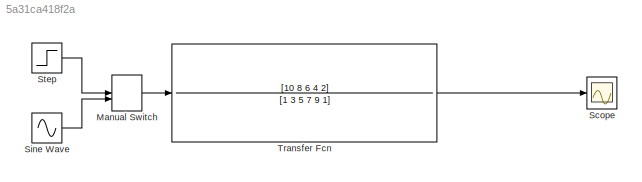
MODEL slx_5a31ca418f2a
KIND model
CONFIG AbsTol = auto
CONFIG EnableMultiTasking = off
CONFIG FixedStep = auto
CONFIG MaxStep = auto
CONFIG MinStep = auto
CONFIG RelTol = 1e-3
CONFIG SampleTimeConstraint = Unconstrained
CONFIG SolverName = VariableStepAuto
CONFIG StartTime = 0.0
CONFIG StopTime = 10.0
BLOCK [ManualSwitch] Manual Switch
  CurrentSetting = 0
BLOCK [Scope] Scope
  Floating = off
  NumInputPorts = 1
  ScopeSpecificationString = Simulink.scopes.TimeScopeBlockCfg('CurrentConfiguration', extmgr.ConfigurationSet(extmgr.Configuration('Core','General UI',true),extmgr.Configuration('Core','Source UI',true),extmgr.Configuration('Sources','WiredSimulink',true),extmgr.Configuration('Visuals','Time Domain',true,'SerializedDisplays',{struct('MinYLimReal','-14.45184','MaxYLimReal','18.52635','YLabelReal','','MinYLimMag','0.00000','Ma...<+1368ch>
BLOCK [Sin] Sine Wave
  SampleTime = 0
BLOCK [Step] Step
  SampleTime = 0
BLOCK [TransferFcn] Transfer Fcn
  Denominator = [1 3 5 7 9 1]
  Numerator = [10 8 6 4 2]
LINE Manual Switch:1 -> Transfer Fcn:1
LINE Sine Wave:1 -> Manual Switch:2
LINE Step:1 -> Manual Switch:1
LINE Transfer Fcn:1 -> Scope:1
